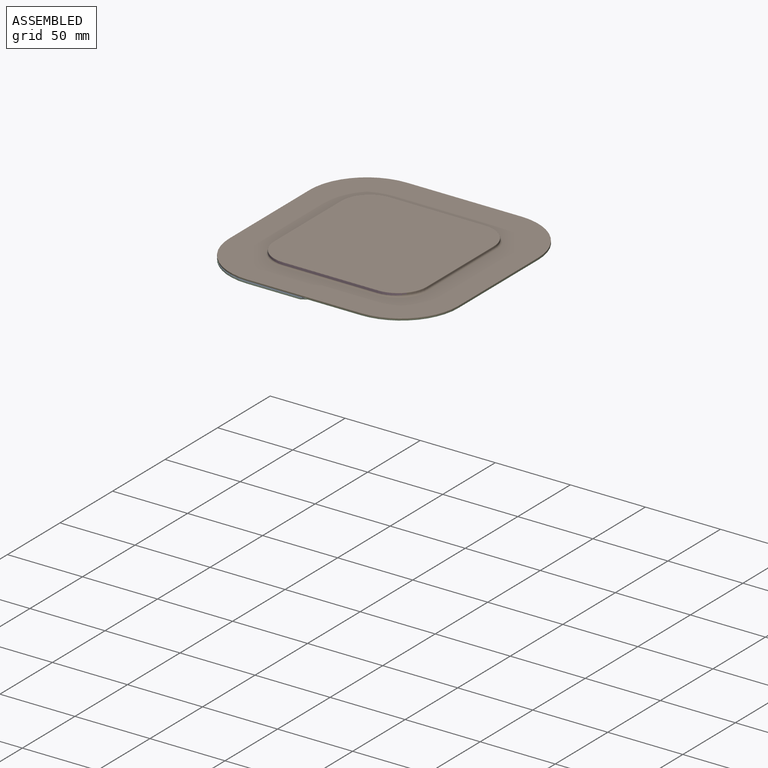
[diagram: assembled view]
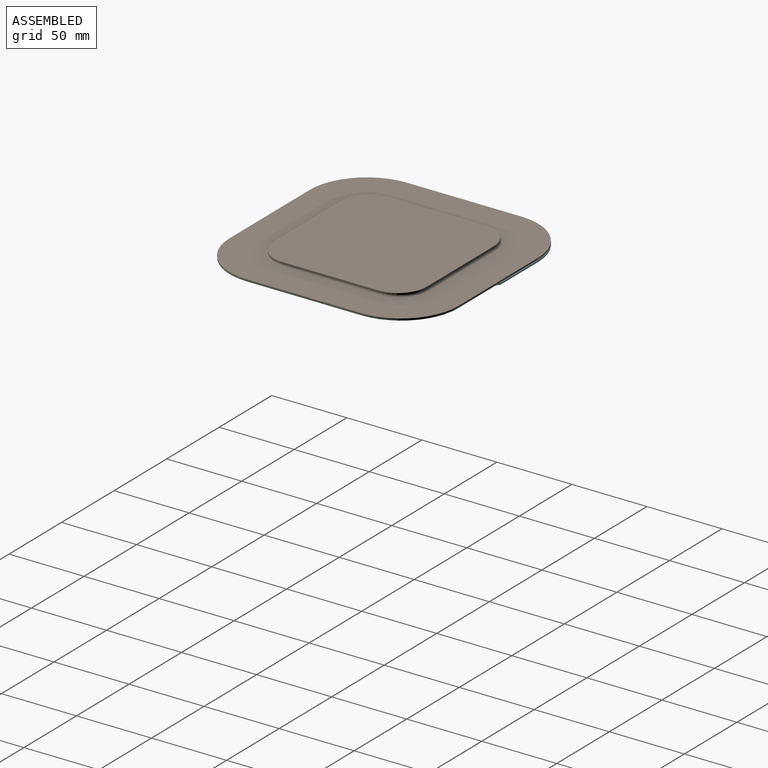
[diagram: assembled view, second angle]
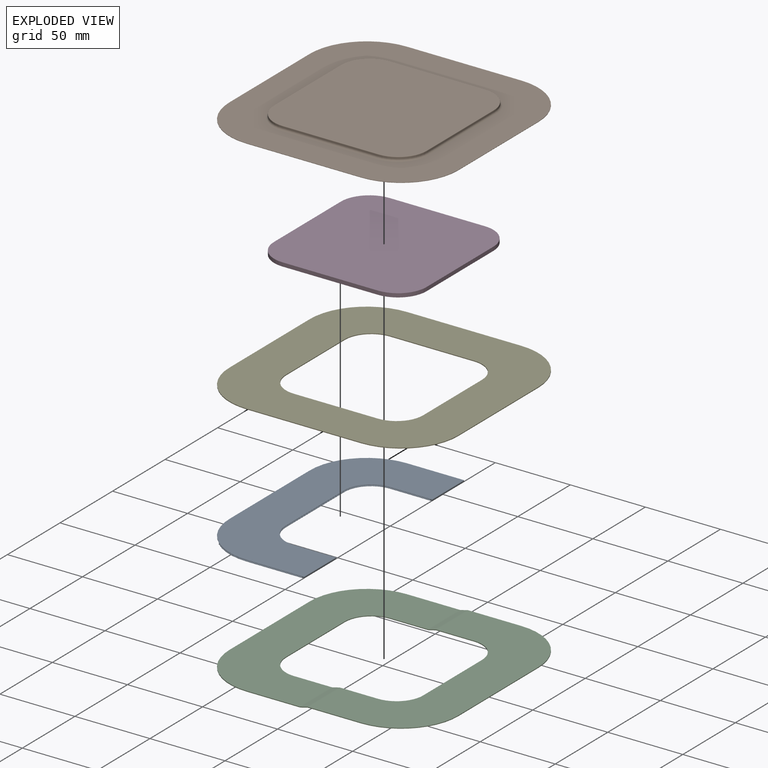
[diagram: exploded view]
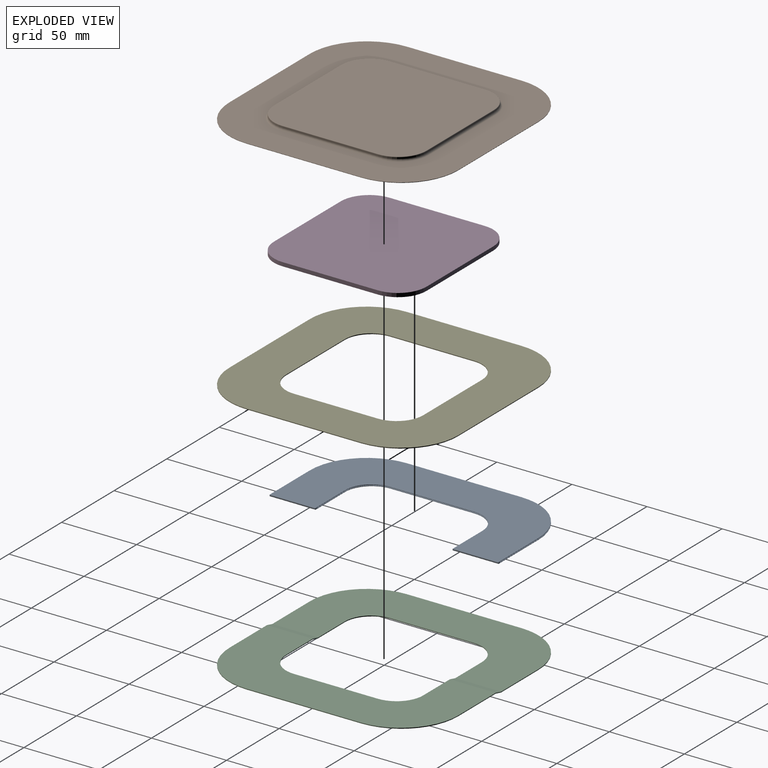
[diagram: exploded view, second angle]
ASSEMBLY  parts=5 mates=4
PART A: 28 faces, bbox 76.2x152.4x1 mm
  f0: plane 152.4x63.25mm, normal (0,0,1), area 5438.8mm2, adj f6,f8,f9,f12,f15,f17,f18,f23
  f1: plane 152.4x62.23mm, normal (0,0,-1), area 5376.9mm2, adj f5,f8,f9,f12,f15,f16,f17,f23
  f2: plane 30.48x0.51mm, normal (1,0,0), area 15.5mm2, adj f6,f7,f12,f23
  f3: plane 152.4x75.95mm, normal (0,0,-1), area 6906.2mm2, adj f7,f10,f12,f13,f14,f15,f19,f20
  f4: plane 152.4x74.93mm, normal (0,0,1), area 6844.2mm2, adj f5,f10,f12,f13,f14,f15,f16,f20
  f5: plane 30.48x0.51mm, normal (-1,0,0), area 15.5mm2, adj f1,f4,f12,f23
  f6: cylinder r=0.25mm len=30.48mm, axis (0,-1,0), area 12.2mm2, adj f0,f2,f12,f23
  f7: cylinder r=0.25mm len=30.48mm, axis (0,1,0), area 12.2mm2, adj f2,f3,f12,f23
  f8: cylinder r=38.1mm len=25.4mm, axis (0,0,-1), area 7.1mm2, adj f0,f1,f12,f17
  f9: cylinder r=38.1mm len=25.4mm, axis (0,0,-1), area 7.1mm2, adj f0,f1,f15,f17
  f10: plane 76.2x0.25mm, normal (-1,0,0), area 19.4mm2, adj f3,f4,f13,f14
  f11: plane 30.48x0.51mm, normal (1,0,0), area 15.5mm2, adj f15,f18,f19,f27
  f12: plane 38.1x1.02mm, normal (0,1,0), area 20mm2, adj f0,f1,f2,f3,f4,f5,f6,f7
  f13: cylinder r=38.1mm len=38.1mm, axis (0,0,-1), area 15.2mm2, adj f3,f4,f10,f12
  f14: cylinder r=38.1mm len=38.1mm, axis (0,0,-1), area 15.2mm2, adj f3,f4,f10,f15
  f15: plane 38.1x1.02mm, normal (0,-1,0), area 20mm2, adj f0,f1,f3,f4,f9,f11,f14,f16
  f16: plane 30.48x0.51mm, normal (-1,0,0), area 15.5mm2, adj f1,f4,f15,f27
  f17: plane 133x0.25mm, normal (-1,0,0), area 33.8mm2, adj f0,f1,f8,f9
  f18: cylinder r=0.25mm len=30.48mm, axis (0,-1,0), area 12.2mm2, adj f0,f11,f15,f27
  f19: cylinder r=0.25mm len=30.48mm, axis (0,1,0), area 12.2mm2, adj f3,f11,f15,f27
  f20: cylinder r=17.78mm len=17.78mm, axis (0,0,1), area 7.1mm2, adj f3,f4,f21,f23
  f21: plane 55.88x0.25mm, normal (1,0,0), area 14.2mm2, adj f3,f4,f20,f22
  f22: cylinder r=17.78mm len=17.78mm, axis (0,0,1), area 7.1mm2, adj f3,f4,f21,f27
  f23: plane 28.19x1.02mm, normal (0,-1,0), area 14.9mm2, adj f0,f1,f2,f3,f4,f5,f6,f7
  f24: cylinder r=17.78mm len=17.78mm, axis (0,0,1), area 7.1mm2, adj f0,f1,f23,f25
  f25: plane 55.88x0.25mm, normal (1,0,0), area 14.2mm2, adj f0,f1,f24,f26
  f26: cylinder r=17.78mm len=17.78mm, axis (0,0,1), area 7.1mm2, adj f0,f1,f25,f27
  f27: plane 28.19x1.02mm, normal (0,1,0), area 14.9mm2, adj f0,f1,f3,f4,f11,f16,f18,f19
PART B: 60 faces, bbox 152.4x152.4x2.8 mm
  f0: plane 76.2x0.25mm, normal (1,0,0), area 19.4mm2, adj f1,f7,f8,f9
  f1: cylinder r=38.1mm len=38.1mm, axis (0,0,-1), area 15.2mm2, adj f0,f2,f8,f9
  f2: plane 76.2x0.25mm, normal (0,1,0), area 19.4mm2, adj f1,f3,f8,f9
  f3: cylinder r=38.1mm len=38.1mm, axis (0,0,-1), area 15.2mm2, adj f2,f4,f8,f9
  f4: plane 76.2x0.25mm, normal (-1,0,0), area 19.4mm2, adj f3,f5,f8,f9
  f5: cylinder r=38.1mm len=38.1mm, axis (0,0,-1), area 15.2mm2, adj f4,f6,f8,f9
  f6: plane 76.2x0.25mm, normal (0,-1,0), area 19.4mm2, adj f5,f7,f8,f9
  f7: cylinder r=38.1mm len=38.1mm, axis (0,0,-1), area 15.2mm2, adj f0,f6,f8,f9
  f8: plane 152.4x152.4mm, normal (0,0,1), area 11436mm2, adj f0,f1,f2,f3,f4,f5,f6,f7
  f9: plane 152.4x152.4mm, normal (0,0,-1), area 11489mm2, adj f0,f1,f2,f3,f4,f5,f6,f7
  f10: cylinder r=19.05mm len=19.05mm, axis (0,0,-1), area 30.4mm2, adj f11,f17,f33,f41
  f11: plane 63.75x1.02mm, normal (0,1,0), area 64.8mm2, adj f10,f12,f35,f43
  f12: cylinder r=19.05mm len=19.05mm, axis (0,0,-1), area 30.4mm2, adj f11,f13,f34,f42
  f13: plane 63.75x1.02mm, normal (-1,0,0), area 64.8mm2, adj f12,f14,f32,f40
  f14: cylinder r=19.05mm len=19.05mm, axis (0,0,-1), area 30.4mm2, adj f13,f15,f30,f38
  f15: plane 63.75x1.02mm, normal (0,-1,0), area 64.8mm2, adj f14,f16,f28,f36
  f16: cylinder r=19.05mm len=19.05mm, axis (0,0,-1), area 30.4mm2, adj f15,f17,f29,f37
  f17: plane 63.75x1.02mm, normal (1,0,0), area 64.8mm2, adj f10,f16,f31,f39
  f18: plane 101.35x101.35mm, normal (0,0,1), area 9967.7mm2, adj f36,f37,f38,f39,f40,f41,f42,f43
  f19: cylinder r=19.05mm len=19.05mm, axis (0,0,-1), area 30.4mm2, adj f20,f26,f50,f58
  f20: plane 63.5x1.02mm, normal (0,1,0), area 64.5mm2, adj f19,f21,f48,f56
  f21: cylinder r=19.05mm len=19.05mm, axis (0,0,-1), area 30.4mm2, adj f20,f22,f46,f54
  f22: plane 63.5x1.02mm, normal (1,0,0), area 64.5mm2, adj f21,f23,f44,f52
  f23: cylinder r=19.05mm len=19.05mm, axis (0,0,-1), area 30.4mm2, adj f22,f24,f45,f53
  f24: plane 63.5x1.02mm, normal (0,-1,0), area 64.5mm2, adj f23,f25,f47,f55
  f25: cylinder r=19.05mm len=19.05mm, axis (0,0,-1), area 30.4mm2, adj f24,f26,f49,f57
  f26: plane 63.5x1.02mm, normal (-1,0,0), area 64.5mm2, adj f19,f25,f51,f59
  f27: plane 101.09x101.09mm, normal (0,0,-1), area 9916.3mm2, adj f44,f45,f46,f47,f48,f49,f50,f51
  f28: cylinder r=1.27mm len=63.75mm, axis (1,0,0), area 127.2mm2, adj f8,f15,f29,f30
  f29: torus R=20.32mm, axis (0,0,1), area 61.1mm2, adj f8,f16,f28,f31
  f30: torus R=20.32mm, axis (0,0,1), area 61.1mm2, adj f8,f14,f28,f32
  f31: cylinder r=1.27mm len=63.75mm, axis (0,1,0), area 127.2mm2, adj f8,f17,f29,f33
  f32: cylinder r=1.27mm len=63.75mm, axis (0,-1,0), area 127.2mm2, adj f8,f13,f30,f34
  f33: torus R=20.32mm, axis (0,0,1), area 61.1mm2, adj f8,f10,f31,f35
  f34: torus R=20.32mm, axis (0,0,1), area 61.1mm2, adj f8,f12,f32,f35
  f35: cylinder r=1.27mm len=63.75mm, axis (-1,0,0), area 127.2mm2, adj f8,f11,f33,f34
  f36: cylinder r=0.25mm len=63.75mm, axis (-1,0,0), area 25.4mm2, adj f15,f18,f37,f38
  f37: torus R=18.8mm, axis (0,0,1), area 11.9mm2, adj f16,f18,f36,f39
  f38: torus R=18.8mm, axis (0,0,1), area 11.9mm2, adj f14,f18,f36,f40
  f39: cylinder r=0.25mm len=63.75mm, axis (0,-1,0), area 25.4mm2, adj f17,f18,f37,f41
  f40: cylinder r=0.25mm len=63.75mm, axis (0,1,0), area 25.4mm2, adj f13,f18,f38,f42
  f41: torus R=18.8mm, axis (0,0,1), area 11.9mm2, adj f10,f18,f39,f43
  f42: torus R=18.8mm, axis (0,0,1), area 11.9mm2, adj f12,f18,f40,f43
  f43: cylinder r=0.25mm len=63.75mm, axis (1,0,0), area 25.4mm2, adj f11,f18,f41,f42
  f44: cylinder r=0.25mm len=63.5mm, axis (0,1,0), area 25.3mm2, adj f22,f27,f45,f46
  f45: torus R=18.8mm, axis (0,0,-1), area 11.9mm2, adj f23,f27,f44,f47
  f46: torus R=18.8mm, axis (0,0,-1), area 11.9mm2, adj f21,f27,f44,f48
  f47: cylinder r=0.25mm len=63.5mm, axis (1,0,0), area 25.3mm2, adj f24,f27,f45,f49
  f48: cylinder r=0.25mm len=63.5mm, axis (-1,0,0), area 25.3mm2, adj f20,f27,f46,f50
  f49: torus R=18.8mm, axis (0,0,-1), area 11.9mm2, adj f25,f27,f47,f51
  f50: torus R=18.8mm, axis (0,0,-1), area 11.9mm2, adj f19,f27,f48,f51
  f51: cylinder r=0.25mm len=63.5mm, axis (0,-1,0), area 25.3mm2, adj f26,f27,f49,f50
  f52: cylinder r=1.27mm len=63.5mm, axis (0,1,0), area 126.7mm2, adj f9,f22,f53,f54
  f53: torus R=20.32mm, axis (0,0,1), area 61.1mm2, adj f9,f23,f52,f55
  f54: torus R=20.32mm, axis (0,0,1), area 61.1mm2, adj f9,f21,f52,f56
  f55: cylinder r=1.27mm len=63.5mm, axis (1,0,0), area 126.7mm2, adj f9,f24,f53,f57
  f56: cylinder r=1.27mm len=63.5mm, axis (-1,0,0), area 126.7mm2, adj f9,f20,f54,f58
  f57: torus R=20.32mm, axis (0,0,1), area 61.1mm2, adj f9,f25,f55,f59
  f58: torus R=20.32mm, axis (0,0,1), area 61.1mm2, adj f9,f19,f56,f59
  f59: cylinder r=1.27mm len=63.5mm, axis (0,-1,0), area 126.7mm2, adj f9,f26,f57,f58
PART C: 48 faces, bbox 152.4x152.4x1.8 mm
  f0: cylinder r=17.78mm len=17.78mm, axis (0,0,-1), area 14.2mm2, adj f1,f7,f8,f9
  f1: plane 55.88x0.51mm, normal (1,0,0), area 28.4mm2, adj f0,f2,f8,f9
  f2: cylinder r=17.78mm len=17.78mm, axis (0,0,-1), area 14.2mm2, adj f1,f3,f8,f9
  f3: plane 25.31x0.51mm, normal (0,1,0), area 12.9mm2, adj f2,f8,f9,f41
  f4: plane 35.47x0.51mm, normal (0,-1,0), area 18mm2, adj f8,f9,f10,f40
  f5: plane 76.2x0.51mm, normal (-1,0,0), area 38.7mm2, adj f8,f9,f10,f11
  f6: plane 35.47x0.51mm, normal (0,1,0), area 18mm2, adj f8,f9,f11,f45
  f7: plane 25.31x0.51mm, normal (0,-1,0), area 12.9mm2, adj f0,f8,f9,f44
  f8: plane 152.4x73.57mm, normal (0,0,-1), area 6784.3mm2, adj f0,f1,f2,f3,f4,f5,f6,f7
  f9: plane 152.4x73.57mm, normal (0,0,1), area 6784.3mm2, adj f0,f1,f2,f3,f4,f5,f6,f7
  f10: cylinder r=38.1mm len=38.1mm, axis (0,0,-1), area 30.4mm2, adj f4,f5,f8,f9
  f11: cylinder r=38.1mm len=38.1mm, axis (0,0,-1), area 30.4mm2, adj f5,f6,f8,f9
  f12: plane 5.08x1.73mm, normal (0,1,0), area 2.6mm2, adj f14,f15,f33,f45
  f13: plane 5.08x1.73mm, normal (0,-1,0), area 2.6mm2, adj f14,f15,f32,f44
  f14: plane 30.48x4.96mm, normal (-0.24,0,-0.97), area 155.8mm2, adj f12,f13,f34,f47
  f15: plane 30.48x4.96mm, normal (0.24,0,0.97), area 155.8mm2, adj f12,f13,f35,f46
  f16: plane 5.08x1.73mm, normal (0,-1,0), area 2.6mm2, adj f18,f19,f36,f40
  f17: plane 5.08x1.73mm, normal (0,1,0), area 2.6mm2, adj f18,f19,f37,f41
  f18: plane 30.48x4.96mm, normal (-0.24,0,-0.97), area 155.8mm2, adj f16,f17,f38,f43
  f19: plane 30.48x4.96mm, normal (0.24,0,0.97), area 155.8mm2, adj f16,f17,f39,f42
  f20: cylinder r=17.78mm len=17.78mm, axis (0,0,-1), area 14.2mm2, adj f21,f27,f28,f29
  f21: plane 55.88x0.51mm, normal (-1,0,0), area 28.4mm2, adj f20,f22,f28,f29
  f22: cylinder r=17.78mm len=17.78mm, axis (0,0,-1), area 14.2mm2, adj f21,f23,f28,f29
  f23: plane 25.37x0.51mm, normal (0,-1,0), area 12.9mm2, adj f22,f28,f29,f32
  f24: plane 35.53x0.51mm, normal (0,1,0), area 18mm2, adj f28,f29,f30,f33
  f25: plane 76.2x0.51mm, normal (1,0,0), area 38.7mm2, adj f28,f29,f30,f31
  f26: plane 35.53x0.51mm, normal (0,-1,0), area 18mm2, adj f28,f29,f31,f36
  f27: plane 25.37x0.51mm, normal (0,1,0), area 12.9mm2, adj f20,f28,f29,f37
  f28: plane 152.4x73.63mm, normal (0,0,-1), area 6788.1mm2, adj f20,f21,f22,f23,f24,f25,f26,f27
  f29: plane 152.4x73.63mm, normal (0,0,1), area 6788.1mm2, adj f20,f21,f22,f23,f24,f25,f26,f27
  f30: cylinder r=38.1mm len=38.1mm, axis (0,0,-1), area 30.4mm2, adj f24,f25,f28,f29
  f31: cylinder r=38.1mm len=38.1mm, axis (0,0,-1), area 30.4mm2, adj f25,f26,f28,f29
  f32: plane 0.52x0.19mm, normal (0,-1,0), area 0.1mm2, adj f13,f23,f34,f35
  f33: plane 0.52x0.19mm, normal (0,1,0), area 0.1mm2, adj f12,f24,f34,f35
  f34: cylinder r=0.76mm len=30.48mm, axis (0,-1,0), area 5.7mm2, adj f14,f28,f32,f33
  f35: cylinder r=0.25mm len=30.48mm, axis (0,-1,0), area 1.9mm2, adj f15,f29,f32,f33
  f36: plane 0.52x0.19mm, normal (0,-1,0), area 0.1mm2, adj f16,f26,f38,f39
  f37: plane 0.52x0.19mm, normal (0,1,0), area 0.1mm2, adj f17,f27,f38,f39
  f38: cylinder r=0.76mm len=30.48mm, axis (0,-1,0), area 5.7mm2, adj f18,f28,f36,f37
  f39: cylinder r=0.25mm len=30.48mm, axis (0,-1,0), area 1.9mm2, adj f19,f29,f36,f37
  f40: plane 0.52x0.19mm, normal (0,-1,0), area 0.1mm2, adj f4,f16,f42,f43
  f41: plane 0.52x0.19mm, normal (0,1,0), area 0.1mm2, adj f3,f17,f42,f43
  f42: cylinder r=0.76mm len=30.48mm, axis (0,-1,0), area 5.7mm2, adj f9,f19,f40,f41
  f43: cylinder r=0.25mm len=30.48mm, axis (0,-1,0), area 1.9mm2, adj f8,f18,f40,f41
  f44: plane 0.52x0.19mm, normal (0,-1,0), area 0.1mm2, adj f7,f13,f46,f47
  f45: plane 0.52x0.19mm, normal (0,1,0), area 0.1mm2, adj f6,f12,f46,f47
  f46: cylinder r=0.76mm len=30.48mm, axis (0,-1,0), area 5.7mm2, adj f9,f15,f44,f45
  f47: cylinder r=0.25mm len=30.48mm, axis (0,-1,0), area 1.9mm2, adj f8,f14,f44,f45
PART D: 10 faces, bbox 101.6x101.6x2.5 mm
  f0: cylinder r=19.05mm len=19.05mm, axis (0,0,-1), area 76mm2, adj f1,f7,f8,f9
  f1: plane 63.5x2.54mm, normal (0,1,0), area 161.3mm2, adj f0,f2,f8,f9
  f2: cylinder r=19.05mm len=19.05mm, axis (0,0,-1), area 76mm2, adj f1,f3,f8,f9
  f3: plane 63.5x2.54mm, normal (-1,0,0), area 161.3mm2, adj f2,f4,f8,f9
  f4: cylinder r=19.05mm len=19.05mm, axis (0,0,-1), area 76mm2, adj f3,f5,f8,f9
  f5: plane 63.5x2.54mm, normal (0,-1,0), area 161.3mm2, adj f4,f6,f8,f9
  f6: cylinder r=19.05mm len=19.05mm, axis (0,0,-1), area 76mm2, adj f5,f7,f8,f9
  f7: plane 63.5x2.54mm, normal (1,0,0), area 161.3mm2, adj f0,f6,f8,f9
  f8: plane 101.6x101.6mm, normal (0,0,1), area 10011mm2, adj f0,f1,f2,f3,f4,f5,f6,f7
  f9: plane 101.6x101.6mm, normal (0,0,-1), area 10011mm2, adj f0,f1,f2,f3,f4,f5,f6,f7
PART E: 18 faces, bbox 152.4x152.4x0.5 mm
  f0: plane 76.2x0.51mm, normal (1,0,0), area 38.7mm2, adj f1,f15,f16,f17
  f1: cylinder r=38.1mm len=38.1mm, axis (0,0,-1), area 30.4mm2, adj f0,f2,f16,f17
  f2: plane 76.2x0.51mm, normal (0,1,0), area 38.7mm2, adj f1,f3,f16,f17
  f3: cylinder r=38.1mm len=38.1mm, axis (0,0,-1), area 30.4mm2, adj f2,f4,f16,f17
  f4: plane 76.2x0.51mm, normal (-1,0,0), area 38.7mm2, adj f3,f5,f16,f17
  f5: cylinder r=38.1mm len=38.1mm, axis (0,0,-1), area 30.4mm2, adj f4,f6,f16,f17
  f6: plane 76.2x0.51mm, normal (0,-1,0), area 38.7mm2, adj f5,f15,f16,f17
  f7: cylinder r=17.78mm len=17.78mm, axis (0,0,-1), area 14.2mm2, adj f8,f14,f16,f17
  f8: plane 55.88x0.51mm, normal (-1,0,0), area 28.4mm2, adj f7,f9,f16,f17
  f9: cylinder r=17.78mm len=17.78mm, axis (0,0,-1), area 14.2mm2, adj f8,f10,f16,f17
  f10: plane 55.88x0.51mm, normal (0,1,0), area 28.4mm2, adj f9,f11,f16,f17
  f11: cylinder r=17.78mm len=17.78mm, axis (0,0,-1), area 14.2mm2, adj f10,f12,f16,f17
  f12: plane 55.88x0.51mm, normal (1,0,0), area 28.4mm2, adj f11,f13,f16,f17
  f13: cylinder r=17.78mm len=17.78mm, axis (0,0,-1), area 14.2mm2, adj f12,f14,f16,f17
  f14: plane 55.88x0.51mm, normal (0,-1,0), area 28.4mm2, adj f7,f13,f16,f17
  f15: cylinder r=38.1mm len=38.1mm, axis (0,0,-1), area 30.4mm2, adj f0,f6,f16,f17
  f16: plane 152.4x152.4mm, normal (0,0,1), area 13889.8mm2, adj f0,f1,f2,f3,f4,f5,f6,f7
  f17: plane 152.4x152.4mm, normal (0,0,-1), area 13889.8mm2, adj f0,f1,f2,f3,f4,f5,f6,f7
PLACE A rot(axis=(1,0,0),180deg) t=(0.67,17.16,-1.95)mm
PLACE B t=(0.67,0.36,-1.44)mm fixed
PLACE C rot(axis=(0,0,1),180deg) t=(-1.87,-75.84,-8.43)mm
PLACE D t=(0.67,0.1,-1.44)mm
PLACE E t=(0.67,0.36,-1.95)mm
MATE fastened B.f27 <-> D.f8  axis (0,0,-1) through (-31.08,50.9,1.1)mm
MATE fastened E.f17 <-> A.f3  axis (0,0,-1) through (-75.53,38.46,-1.95)mm
MATE fastened B.f9 <-> E.f16  axis (0,0,-1) through (-37.43,76.56,-1.44)mm
MATE fastened E.f17 <-> C.f9  axis (0,0,-1) through (76.87,38.46,-1.95)mm
